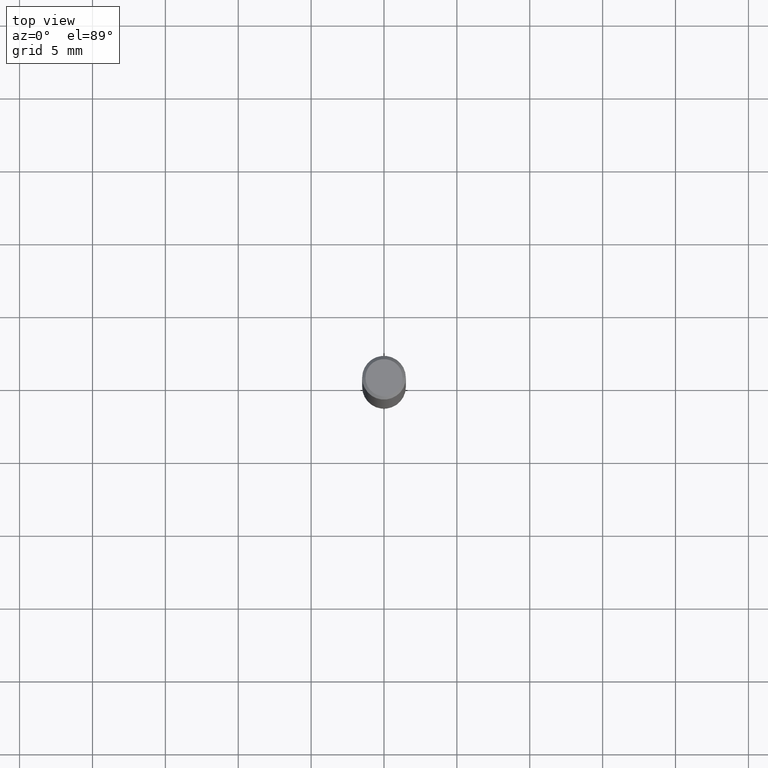
[diagram: clean part render]
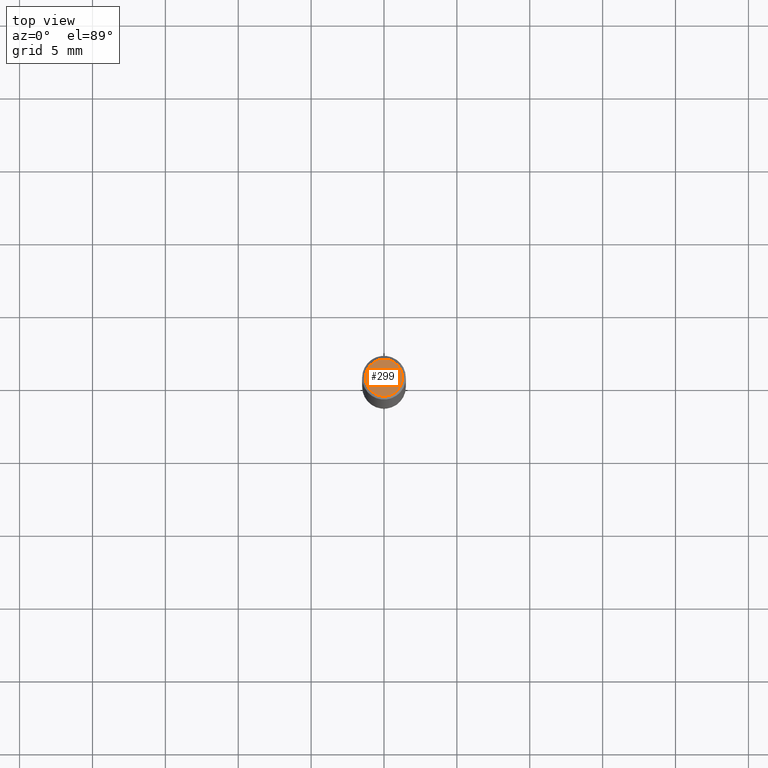
[diagram: same view with one face highlighted and labeled with its STEP entity id]
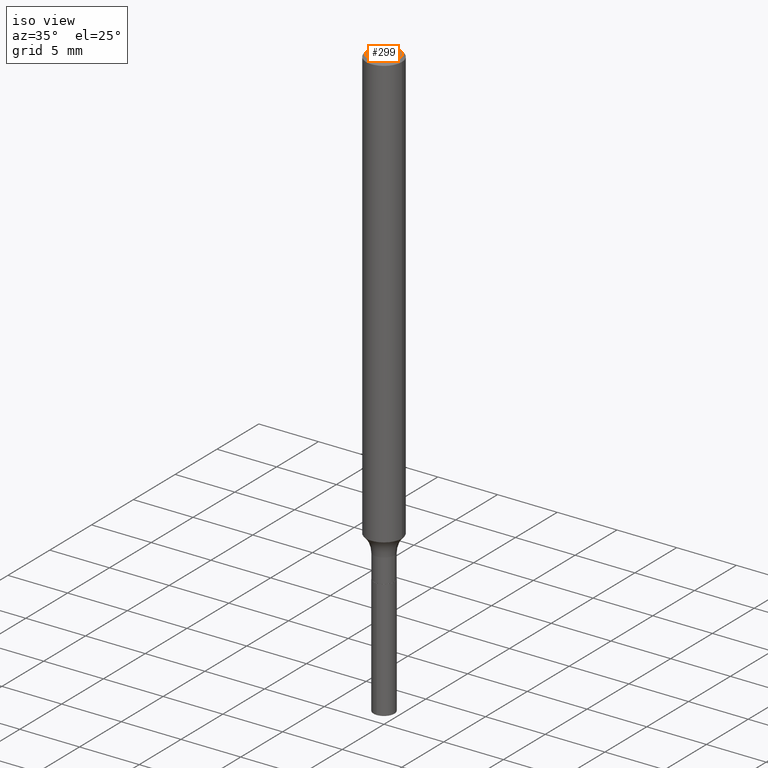
[diagram: same view with one face highlighted and labeled with its STEP entity id]
A machine part, top view. The second image highlights one B-rep face of the part: STEP entity #299.
A second angle (iso view) of the same face is appended — the face is thin or edge-on in the first view.
In plain terms, the highlighted planar face has unit normal (0, -0, -1).
Its self-contained STEP definition (entity closure, byte-faithful):
#23 = EDGE_LOOP ( 'NONE', ( #274, #45 ) ) ;
#32 = DIRECTION ( 'NONE',  ( 1.000000000000000000, -6.982962677686266711E-15, 4.876140833081945105E-29 ) ) ;
#45 = ORIENTED_EDGE ( 'NONE', *, *, #59, .T. ) ;
#49 = VERTEX_POINT ( 'NONE', #442 ) ;
#59 = EDGE_CURVE ( 'NONE', #49, #260, #195, .T. ) ;
#63 = CARTESIAN_POINT ( 'NONE',  ( -0.05019250000000000100, 3.659552521791693345E-16, -3.591276738524661214E-19 ) ) ;
#109 = DIRECTION ( 'NONE',  ( -2.445468806185136597E-29, 3.491481338843145583E-15, 1.000000000000000000 ) ) ;
#120 = AXIS2_PLACEMENT_3D ( 'NONE', #430, #136, #242 ) ;
#136 = DIRECTION ( 'NONE',  ( 2.438088387897960049E-29, -3.491481338843145188E-15, -1.000000000000000000 ) ) ;
#150 = AXIS2_PLACEMENT_3D ( 'NONE', #290, #109, #285 ) ;
#195 = CIRCLE ( 'NONE', #150, 0.05019250000000000100 ) ;
#206 = PLANE ( 'NONE',  #120 ) ;
#213 = CARTESIAN_POINT ( 'NONE',  ( 8.782355238379090331E-48, -1.253887571509286098E-33, -3.591276738499609681E-19 ) ) ;
#242 = DIRECTION ( 'NONE',  ( -1.000000000000000000, 6.982962677686265922E-15, -4.876176775795935793E-29 ) ) ;
#260 = VERTEX_POINT ( 'NONE', #63 ) ;
#274 = ORIENTED_EDGE ( 'NONE', *, *, #481, .T. ) ;
#282 = FACE_OUTER_BOUND ( 'NONE', #23, .T. ) ;
#285 = DIRECTION ( 'NONE',  ( 1.000000000000000000, -6.982962677686266711E-15, 4.876140833081945105E-29 ) ) ;
#290 = CARTESIAN_POINT ( 'NONE',  ( 8.782355238379090331E-48, -1.253887571509286098E-33, -3.591276738499609681E-19 ) ) ;
#299 = ADVANCED_FACE ( 'NONE', ( #282 ), #206, .F. ) ;
#370 = DIRECTION ( 'NONE',  ( -2.445468806185136597E-29, 3.491481338843145583E-15, 1.000000000000000000 ) ) ;
#414 = CIRCLE ( 'NONE', #426, 0.05019250000000000100 ) ;
#426 = AXIS2_PLACEMENT_3D ( 'NONE', #213, #370, #32 ) ;
#430 = CARTESIAN_POINT ( 'NONE',  ( 4.391177619189545165E-48, -6.269437857546430492E-34, -1.795638369249804840E-19 ) ) ;
#442 = CARTESIAN_POINT ( 'NONE',  ( 0.05019250000000000100, -3.901918742401799179E-16, -3.591276738473711219E-19 ) ) ;
#481 = EDGE_CURVE ( 'NONE', #260, #49, #414, .T. ) ;